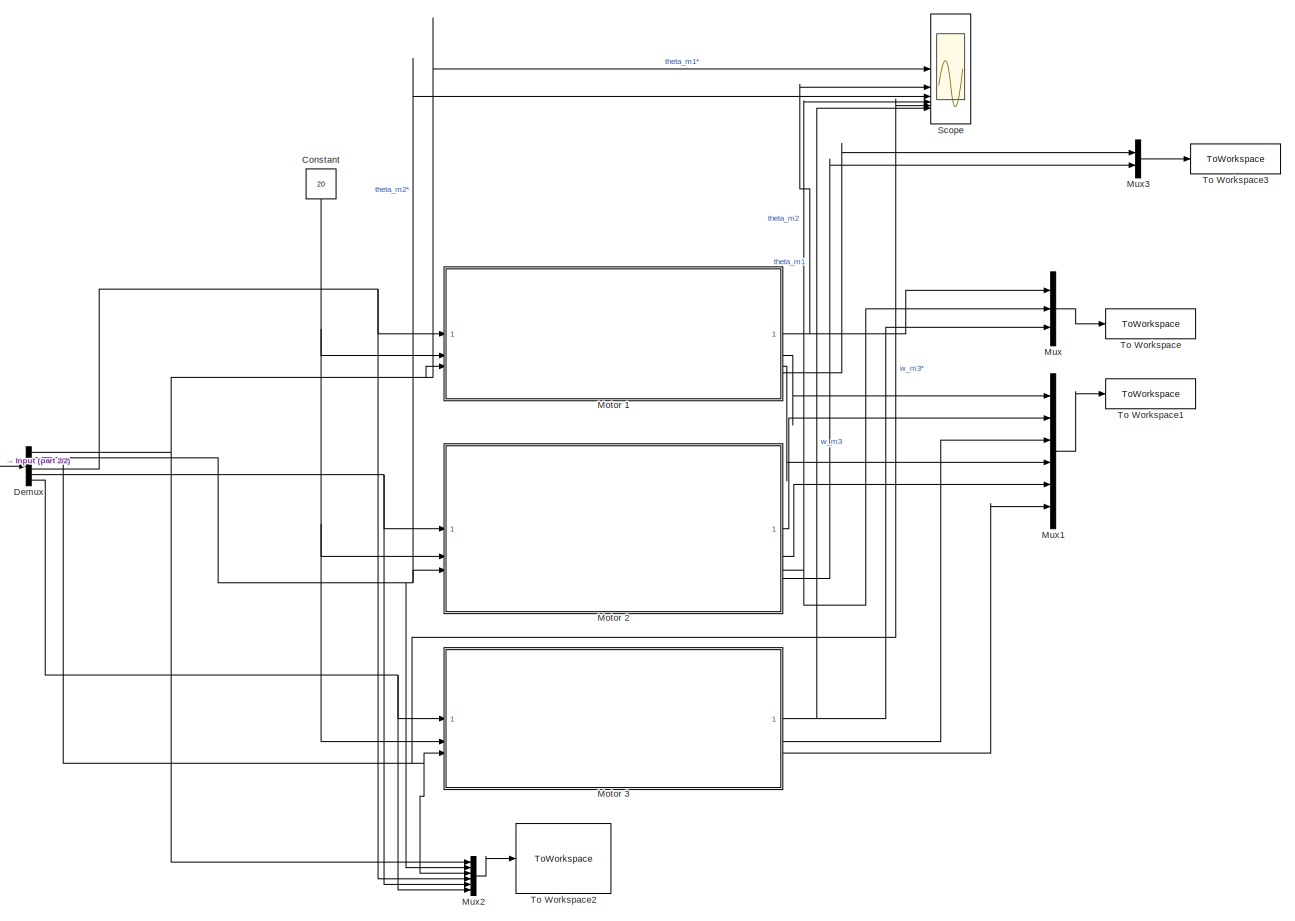
[diagram: root canvas - part 1/2, most of the canvas]
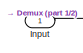
[diagram: root canvas - part 2/2, middle left region]
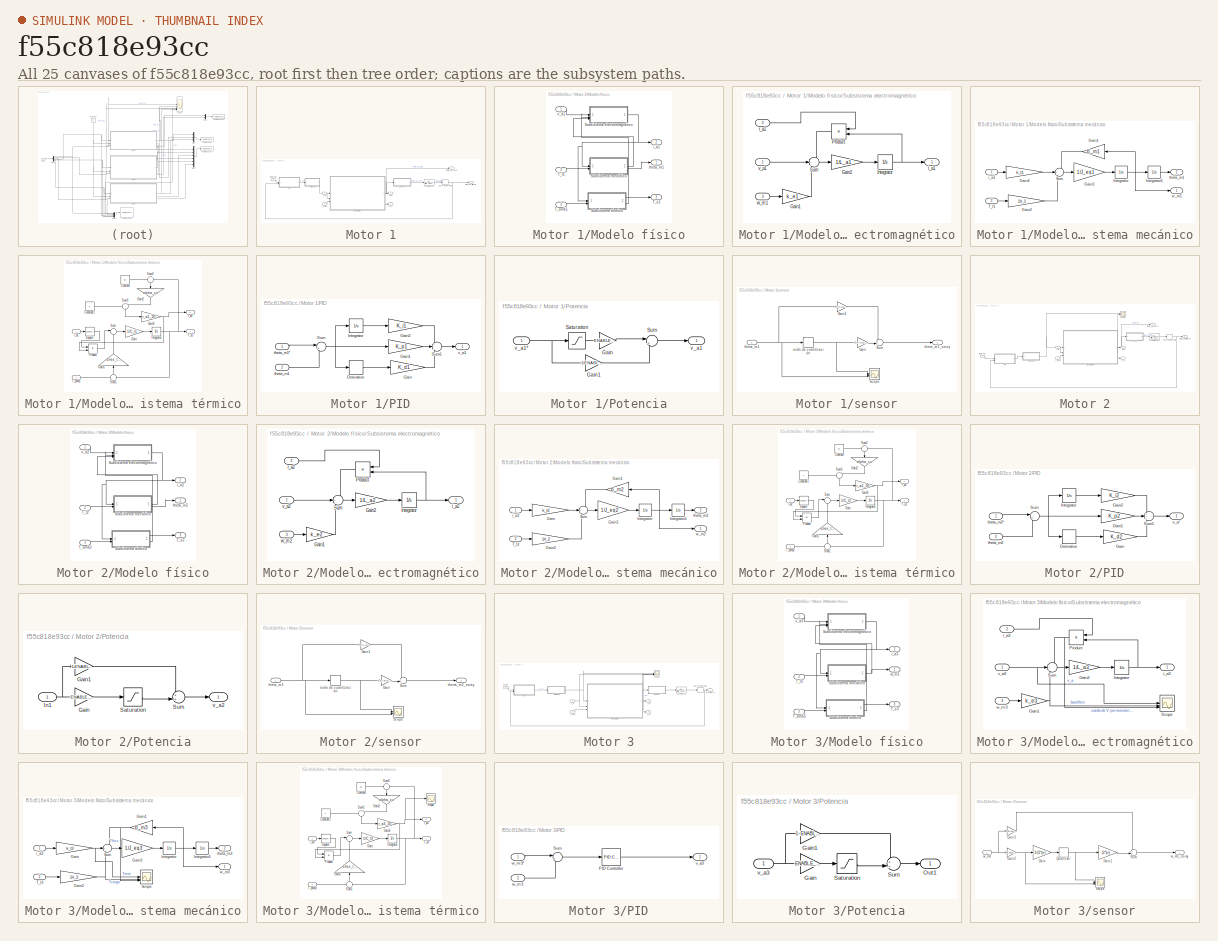
[diagram: thumbnail index - all 25 canvases of the model, root first then tree order]
MODEL slx_f55c818e93cc
KIND model
CONFIG AbsTol = auto
CONFIG EnableMultiTasking = off
CONFIG FixedStep = auto
CONFIG MaxStep = sim_max_step
CONFIG MinStep = auto
CONFIG RelTol = 1e-3
CONFIG SampleTimeConstraint = Unconstrained
CONFIG SolverName = ode15s
CONFIG StartTime = 0.0
CONFIG StopTime = sim_end_time
BLOCK [Constant] Constant
  NameLocation = left
  Value = 20
BLOCK [Demux] Demux
  Outputs = 6
BLOCK [Inport] Input
BLOCK [SubSystem] Motor 1
BLOCK [SubSystem] Motor 1/Modelo físico
BLOCK [SubSystem] Motor 1/Modelo físico/Subsistema electromagnético
BLOCK [Gain] Motor 1/Modelo físico/Subsistema electromagnético/Gain1
  Gain = k_e1
BLOCK [Gain] Motor 1/Modelo físico/Subsistema electromagnético/Gain2
  Gain = 1/L_a1
BLOCK [Integrator] Motor 1/Modelo físico/Subsistema electromagnético/Integrator
BLOCK [Product] Motor 1/Modelo físico/Subsistema electromagnético/Product
  NameLocation = top
BLOCK [Sum] Motor 1/Modelo físico/Subsistema electromagnético/Sum
  Inputs = -+-
  OutMax = [1]
  OutMin = [1]
BLOCK [Outport] Motor 1/Modelo físico/Subsistema electromagnético/i_a1
BLOCK [Inport] Motor 1/Modelo físico/Subsistema electromagnético/r_a1
  Port = 2
BLOCK [Inport] Motor 1/Modelo físico/Subsistema electromagnético/v_a1
BLOCK [Inport] Motor 1/Modelo físico/Subsistema electromagnético/w_m1
  Port = 3
BLOCK [SubSystem] Motor 1/Modelo físico/Subsistema mecánico
BLOCK [Gain] Motor 1/Modelo físico/Subsistema mecánico/Gain1
  Gain = b_m1
  NameLocation = top
BLOCK [Gain] Motor 1/Modelo físico/Subsistema mecánico/Gain2
  Gain = 1/r_1
BLOCK [Gain] Motor 1/Modelo físico/Subsistema mecánico/Gain3
  Gain = 1/J_eq1
BLOCK [Gain] Motor 1/Modelo físico/Subsistema mecánico/Gain4
  Gain = k_t1
BLOCK [Integrator] Motor 1/Modelo físico/Subsistema mecánico/Integrator
BLOCK [Integrator] Motor 1/Modelo físico/Subsistema mecánico/Integrator1
  InitialCondition = theta_m0_1
BLOCK [Sum] Motor 1/Modelo físico/Subsistema mecánico/Sum
  Inputs = -+-
BLOCK [Inport] Motor 1/Modelo físico/Subsistema mecánico/T_l1
  Port = 2
BLOCK [Inport] Motor 1/Modelo físico/Subsistema mecánico/i_a1
BLOCK [Outport] Motor 1/Modelo físico/Subsistema mecánico/theta_m1
  Port = 2
BLOCK [Outport] Motor 1/Modelo físico/Subsistema mecánico/w_m1
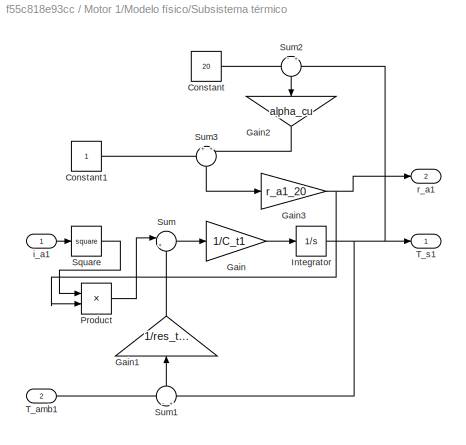
BLOCK [SubSystem] Motor 1/Modelo físico/Subsistema térmico
BLOCK [Constant] Motor 1/Modelo físico/Subsistema térmico/Constant
  Value = 20
BLOCK [Constant] Motor 1/Modelo físico/Subsistema térmico/Constant1
BLOCK [Gain] Motor 1/Modelo físico/Subsistema térmico/Gain
  Gain = 1/C_t1
BLOCK [Gain] Motor 1/Modelo físico/Subsistema térmico/Gain1
  Gain = 1/res_term_1
  NameLocation = right
BLOCK [Gain] Motor 1/Modelo físico/Subsistema térmico/Gain2
  Gain = alpha_cu
  NameLocation = left
BLOCK [Gain] Motor 1/Modelo físico/Subsistema térmico/Gain3
  Gain = r_a1_20
BLOCK [Integrator] Motor 1/Modelo físico/Subsistema térmico/Integrator
  InitialCondition = T_s0_1
BLOCK [Product] Motor 1/Modelo físico/Subsistema térmico/Product
BLOCK [Math] Motor 1/Modelo físico/Subsistema térmico/Square
  Operator = square
BLOCK [Sum] Motor 1/Modelo físico/Subsistema térmico/Sum
  Inputs = |+-
BLOCK [Sum] Motor 1/Modelo físico/Subsistema térmico/Sum1
  Inputs = -|+
  NameLocation = right
BLOCK [Sum] Motor 1/Modelo físico/Subsistema térmico/Sum2
  Inputs = -|+
  NameLocation = left
BLOCK [Sum] Motor 1/Modelo físico/Subsistema térmico/Sum3
  Inputs = +|+
  NameLocation = left
BLOCK [Inport] Motor 1/Modelo físico/Subsistema térmico/T_amb1
  Port = 2
BLOCK [Outport] Motor 1/Modelo físico/Subsistema térmico/T_s1
BLOCK [Inport] Motor 1/Modelo físico/Subsistema térmico/i_a1
BLOCK [Outport] Motor 1/Modelo físico/Subsistema térmico/r_a1
  Port = 2
BLOCK [Inport] Motor 1/Modelo físico/T_amb1
  Port = 3
BLOCK [Inport] Motor 1/Modelo físico/T_l1
  Port = 2
BLOCK [Outport] Motor 1/Modelo físico/T_s1
  Port = 3
  PortDimensions = 1
BLOCK [Outport] Motor 1/Modelo físico/i_a1
  Port = 2
  PortDimensions = 1
BLOCK [Outport] Motor 1/Modelo físico/theta_m1
BLOCK [Inport] Motor 1/Modelo físico/v_a1
BLOCK [SubSystem] Motor 1/PID
BLOCK [Derivative] Motor 1/PID/Derivative
BLOCK [Gain] Motor 1/PID/Gain
  Gain = K_d1
BLOCK [Gain] Motor 1/PID/Gain1
  Gain = K_p1
BLOCK [Gain] Motor 1/PID/Gain2
  Gain = K_i1
BLOCK [Integrator] Motor 1/PID/Integrator
BLOCK [Sum] Motor 1/PID/Sum
  Inputs = |+-
BLOCK [Sum] Motor 1/PID/Sum1
  Inputs = +++
BLOCK [Inport] Motor 1/PID/theta_m1
  Port = 2
BLOCK [Inport] Motor 1/PID/theta_m1*
BLOCK [Outport] Motor 1/PID/v_a1
BLOCK [SubSystem] Motor 1/Potencia
BLOCK [Gain] Motor 1/Potencia/Gain
  Gain = ENABLE_SATURATIONS
BLOCK [Gain] Motor 1/Potencia/Gain1
  Gain = 1-ENABLE_SATURATIONS
BLOCK [Saturate] Motor 1/Potencia/Saturation
  LowerLimit = -voltage_1
  UpperLimit = +voltage_1
BLOCK [Sum] Motor 1/Potencia/Sum
  Inputs = |++
BLOCK [Outport] Motor 1/Potencia/v_a1
BLOCK [Inport] Motor 1/Potencia/v_a1*
BLOCK [Inport] Motor 1/T_amb1
  Port = 2
BLOCK [Inport] Motor 1/T_l1
BLOCK [Outport] Motor 1/T_s1
  Port = 3
  PortDimensions = 1
BLOCK [TransferFcn] Motor 1/Transfer Fcn
  Denominator = [filter_RC 1]
BLOCK [ZeroOrderHold] Motor 1/Zero-Order Hold
  SampleTime = 1/sampling_frequency
BLOCK [Outport] Motor 1/i_a1
  Port = 2
  PortDimensions = 1
BLOCK [SubSystem] Motor 1/sensor
BLOCK [Gain] Motor 1/sensor/Gain
  Gain = ENABLE_SENSORS
BLOCK [Gain] Motor 1/sensor/Gain1
  Gain = 1-ENABLE_SENSORS
BLOCK [Scope] Motor 1/sensor/Scope
  Floating = off
  NumInputPorts = 2
  ScopeSpecificationString = Simulink.scopes.TimeScopeBlockCfg('CurrentConfiguration', extmgr.ConfigurationSet(extmgr.Configuration('Core','General UI',true),extmgr.Configuration('Core','Source UI',true),extmgr.Configuration('Sources','WiredSimulink',true,'DataLoggingVariableName','ScopeData1'),extmgr.Configuration('Visuals','Time Domain',true,'SerializedDisplays',{struct('MinYLimReal','0.01465','MaxYLimReal','0.02139','YLabe...<+1483ch>
BLOCK [Sum] Motor 1/sensor/Sum
  Inputs = ++|
BLOCK [Quantizer] Motor 1/sensor/ruido de cuantización
  QuantizationInterval = 360/enc_ppr_1*(pi/180)
BLOCK [Inport] Motor 1/sensor/theta_m1
BLOCK [Outport] Motor 1/sensor/theta_m1_noisy
BLOCK [Inport] Motor 1/theta_m1*
  Port = 3
BLOCK [Outport] Motor 1/theta_m1_filtered
  PortDimensions = 1
BLOCK [Outport] Motor 1/theta_m1_pura
  Port = 4
BLOCK [SubSystem] Motor 2
BLOCK [SubSystem] Motor 2/Modelo físico
BLOCK [SubSystem] Motor 2/Modelo físico/Subsistema electromagnético
BLOCK [Gain] Motor 2/Modelo físico/Subsistema electromagnético/Gain1
  Gain = k_e2
BLOCK [Gain] Motor 2/Modelo físico/Subsistema electromagnético/Gain2
  Gain = 1/L_a2
BLOCK [Integrator] Motor 2/Modelo físico/Subsistema electromagnético/Integrator
BLOCK [Product] Motor 2/Modelo físico/Subsistema electromagnético/Product
  NameLocation = top
BLOCK [Sum] Motor 2/Modelo físico/Subsistema electromagnético/Sum
  Inputs = -+-
BLOCK [Outport] Motor 2/Modelo físico/Subsistema electromagnético/i_a2
BLOCK [Inport] Motor 2/Modelo físico/Subsistema electromagnético/r_a2
  Port = 2
BLOCK [Inport] Motor 2/Modelo físico/Subsistema electromagnético/v_a2
BLOCK [Inport] Motor 2/Modelo físico/Subsistema electromagnético/w_m2
  Port = 3
BLOCK [SubSystem] Motor 2/Modelo físico/Subsistema mecánico
BLOCK [Gain] Motor 2/Modelo físico/Subsistema mecánico/Gain
  Gain = k_t2
BLOCK [Gain] Motor 2/Modelo físico/Subsistema mecánico/Gain1
  Gain = b_m2
  NameLocation = top
BLOCK [Gain] Motor 2/Modelo físico/Subsistema mecánico/Gain2
  Gain = 1/r_2
BLOCK [Gain] Motor 2/Modelo físico/Subsistema mecánico/Gain3
  Gain = 1/J_eq2
BLOCK [Integrator] Motor 2/Modelo físico/Subsistema mecánico/Integrator
BLOCK [Integrator] Motor 2/Modelo físico/Subsistema mecánico/Integrator1
  InitialCondition = theta_m0_2
BLOCK [Sum] Motor 2/Modelo físico/Subsistema mecánico/Sum
  Inputs = -+-
BLOCK [Inport] Motor 2/Modelo físico/Subsistema mecánico/T_l2
  Port = 2
BLOCK [Inport] Motor 2/Modelo físico/Subsistema mecánico/i_a2
BLOCK [Outport] Motor 2/Modelo físico/Subsistema mecánico/theta_m2
  Port = 2
BLOCK [Outport] Motor 2/Modelo físico/Subsistema mecánico/w_m2
BLOCK [SubSystem] Motor 2/Modelo físico/Subsistema térmico
BLOCK [Constant] Motor 2/Modelo físico/Subsistema térmico/Constant
  Value = 20
BLOCK [Constant] Motor 2/Modelo físico/Subsistema térmico/Constant1
BLOCK [Gain] Motor 2/Modelo físico/Subsistema térmico/Gain
  Gain = 1/C_t2
BLOCK [Gain] Motor 2/Modelo físico/Subsistema térmico/Gain1
  Gain = 1/res_term_2
  NameLocation = right
BLOCK [Gain] Motor 2/Modelo físico/Subsistema térmico/Gain2
  Gain = alpha_cu
  NameLocation = left
BLOCK [Gain] Motor 2/Modelo físico/Subsistema térmico/Gain3
  Gain = r_a2_20
BLOCK [Integrator] Motor 2/Modelo físico/Subsistema térmico/Integrator
  InitialCondition = T_s0_2
BLOCK [Product] Motor 2/Modelo físico/Subsistema térmico/Product
BLOCK [Math] Motor 2/Modelo físico/Subsistema térmico/Square
  Operator = square
BLOCK [Sum] Motor 2/Modelo físico/Subsistema térmico/Sum
  Inputs = |+-
BLOCK [Sum] Motor 2/Modelo físico/Subsistema térmico/Sum1
  Inputs = -|+
  NameLocation = right
BLOCK [Sum] Motor 2/Modelo físico/Subsistema térmico/Sum2
  Inputs = -|+
  NameLocation = left
BLOCK [Sum] Motor 2/Modelo físico/Subsistema térmico/Sum3
  Inputs = +|+
  NameLocation = left
BLOCK [Inport] Motor 2/Modelo físico/Subsistema térmico/T_amb2
  Port = 2
BLOCK [Outport] Motor 2/Modelo físico/Subsistema térmico/T_s2
  PortDimensions = 1
BLOCK [Inport] Motor 2/Modelo físico/Subsistema térmico/i_a2
BLOCK [Outport] Motor 2/Modelo físico/Subsistema térmico/r_a2
  Port = 2
BLOCK [Inport] Motor 2/Modelo físico/T_amb2
  Port = 3
BLOCK [Inport] Motor 2/Modelo físico/T_l2
  Port = 2
BLOCK [Outport] Motor 2/Modelo físico/T_s2
  Port = 3
  PortDimensions = 1
BLOCK [Outport] Motor 2/Modelo físico/i_a2
  Port = 2
  PortDimensions = 1
BLOCK [Outport] Motor 2/Modelo físico/theta_m2
BLOCK [Inport] Motor 2/Modelo físico/v_a2
BLOCK [SubSystem] Motor 2/PID
BLOCK [Derivative] Motor 2/PID/Derivative
BLOCK [Gain] Motor 2/PID/Gain
  Gain = K_d2
BLOCK [Gain] Motor 2/PID/Gain1
  Gain = K_p2
BLOCK [Gain] Motor 2/PID/Gain2
  Gain = K_i2
BLOCK [Integrator] Motor 2/PID/Integrator
BLOCK [Sum] Motor 2/PID/Sum
  Inputs = |+-
BLOCK [Sum] Motor 2/PID/Sum1
  Inputs = +++
BLOCK [Inport] Motor 2/PID/theta_m2
  Port = 2
BLOCK [Inport] Motor 2/PID/theta_m2*
BLOCK [Outport] Motor 2/PID/v_a*
BLOCK [SubSystem] Motor 2/Potencia
BLOCK [Gain] Motor 2/Potencia/Gain
  Gain = ENABLE_SATURATIONS
BLOCK [Gain] Motor 2/Potencia/Gain1
  Gain = 1-ENABLE_SATURATIONS
BLOCK [Inport] Motor 2/Potencia/In1
BLOCK [Saturate] Motor 2/Potencia/Saturation
  LowerLimit = -voltage_2
  UpperLimit = +voltage_2
BLOCK [Sum] Motor 2/Potencia/Sum
  Inputs = ++|
BLOCK [Outport] Motor 2/Potencia/v_a2
BLOCK [Scope] Motor 2/Scope
  Floating = off
  NumInputPorts = 2
  ScopeSpecificationString = Simulink.scopes.TimeScopeBlockCfg('CurrentConfiguration', extmgr.ConfigurationSet(extmgr.Configuration('Core','General UI',true),extmgr.Configuration('Core','Source UI',true),extmgr.Configuration('Sources','WiredSimulink',true,'DataLoggingVariableName','ScopeData1'),extmgr.Configuration('Visuals','Time Domain',true,'SerializedDisplays',{struct('MinYLimReal','-41.66241','MaxYLimReal','57.96249','YL...<+2093ch>
BLOCK [Inport] Motor 2/T_amb2
  Port = 2
BLOCK [Inport] Motor 2/T_l2
BLOCK [Outport] Motor 2/T_s2
  Port = 2
  PortDimensions = 1
BLOCK [TransferFcn] Motor 2/Transfer Fcn
  Denominator = [filter_RC 1]
BLOCK [ZeroOrderHold] Motor 2/Zero-Order Hold
  SampleTime = 1/sampling_frequency
BLOCK [Outport] Motor 2/i_a2
  PortDimensions = 1
BLOCK [SubSystem] Motor 2/sensor
BLOCK [Gain] Motor 2/sensor/Gain
  Gain = ENABLE_SENSORS
BLOCK [Gain] Motor 2/sensor/Gain1
  Gain = 1-ENABLE_SENSORS
BLOCK [Scope] Motor 2/sensor/Scope
  Floating = off
  NumInputPorts = 2
  ScopeSpecificationString = Simulink.scopes.TimeScopeBlockCfg('CurrentConfiguration', extmgr.ConfigurationSet(extmgr.Configuration('Core','General UI',true),extmgr.Configuration('Core','Source UI',true),extmgr.Configuration('Sources','WiredSimulink',true,'DataLoggingVariableName','ScopeData1'),extmgr.Configuration('Visuals','Time Domain',true,'SerializedDisplays',{struct('MinYLimReal','-10.32566','MaxYLimReal','92.0571','YLa...<+1483ch>
BLOCK [Sum] Motor 2/sensor/Sum
  Inputs = ++|
BLOCK [Quantizer] Motor 2/sensor/ruido de cuantización
  QuantizationInterval = 360/enc_ppr_2*(pi/180)
BLOCK [Outport] Motor 2/sensor/therta_m2_noisy
BLOCK [Inport] Motor 2/sensor/theta_m2
BLOCK [Inport] Motor 2/theta_m2*
  Port = 3
BLOCK [Outport] Motor 2/theta_m2_filtered
  Port = 3
  PortDimensions = 1
BLOCK [Outport] Motor 2/theta_m2_pura
  Port = 4
BLOCK [SubSystem] Motor 3
BLOCK [SubSystem] Motor 3/Modelo físico
BLOCK [SubSystem] Motor 3/Modelo físico/Subsistema electromagnético
BLOCK [Gain] Motor 3/Modelo físico/Subsistema electromagnético/Gain1
  Gain = k_e3
BLOCK [Gain] Motor 3/Modelo físico/Subsistema electromagnético/Gain2
  Gain = 1/L_a3
BLOCK [Integrator] Motor 3/Modelo físico/Subsistema electromagnético/Integrator
BLOCK [Product] Motor 3/Modelo físico/Subsistema electromagnético/Product
  NameLocation = top
BLOCK [Scope] Motor 3/Modelo físico/Subsistema electromagnético/Scope
  Floating = off
  NumInputPorts = 3
  ScopeSpecificationString = Simulink.scopes.TimeScopeBlockCfg('CurrentConfiguration', extmgr.ConfigurationSet(extmgr.Configuration('Core','General UI',true),extmgr.Configuration('Core','Source UI',true),extmgr.Configuration('Sources','WiredSimulink',true,'DataLoggingVariableName','ScopeData2'),extmgr.Configuration('Visuals','Time Domain',true,'SerializedDisplays',{struct('MinYLimReal','-9.00697','MaxYLimReal','81.00077','YLa...<+2828ch>
BLOCK [Sum] Motor 3/Modelo físico/Subsistema electromagnético/Sum
  Inputs = -+-
BLOCK [Outport] Motor 3/Modelo físico/Subsistema electromagnético/i_a3
  PortDimensions = 1
BLOCK [Inport] Motor 3/Modelo físico/Subsistema electromagnético/r_a3
  Port = 2
BLOCK [Inport] Motor 3/Modelo físico/Subsistema electromagnético/v_a3
BLOCK [Inport] Motor 3/Modelo físico/Subsistema electromagnético/w_m3
  Port = 3
BLOCK [SubSystem] Motor 3/Modelo físico/Subsistema mecánico
BLOCK [Gain] Motor 3/Modelo físico/Subsistema mecánico/Gain
  Gain = k_t3
BLOCK [Gain] Motor 3/Modelo físico/Subsistema mecánico/Gain1
  Gain = b_m3
  NameLocation = top
BLOCK [Gain] Motor 3/Modelo físico/Subsistema mecánico/Gain2
  Gain = 1/r_3
BLOCK [Gain] Motor 3/Modelo físico/Subsistema mecánico/Gain3
  Gain = 1/J_eq3
BLOCK [Integrator] Motor 3/Modelo físico/Subsistema mecánico/Integrator
BLOCK [Integrator] Motor 3/Modelo físico/Subsistema mecánico/Integrator1
BLOCK [Scope] Motor 3/Modelo físico/Subsistema mecánico/Scope
  Floating = off
  NumInputPorts = 3
  ScopeSpecificationString = Simulink.scopes.TimeScopeBlockCfg('CurrentConfiguration', extmgr.ConfigurationSet(extmgr.Configuration('Core','General UI',true),extmgr.Configuration('Core','Source UI',true),extmgr.Configuration('Sources','WiredSimulink',true,'DataLoggingVariableName','ScopeData2'),extmgr.Configuration('Visuals','Time Domain',true,'SerializedDisplays',{struct('MinYLimReal','212.12982','MaxYLimReal','212.46277','Y...<+2791ch>
BLOCK [Sum] Motor 3/Modelo físico/Subsistema mecánico/Sum
  Inputs = -+-
BLOCK [Inport] Motor 3/Modelo físico/Subsistema mecánico/T_l3
  Port = 2
BLOCK [Inport] Motor 3/Modelo físico/Subsistema mecánico/i_a3
BLOCK [Outport] Motor 3/Modelo físico/Subsistema mecánico/theta_m3
  Port = 2
  PortDimensions = 1
BLOCK [Outport] Motor 3/Modelo físico/Subsistema mecánico/w_m3
  PortDimensions = 1
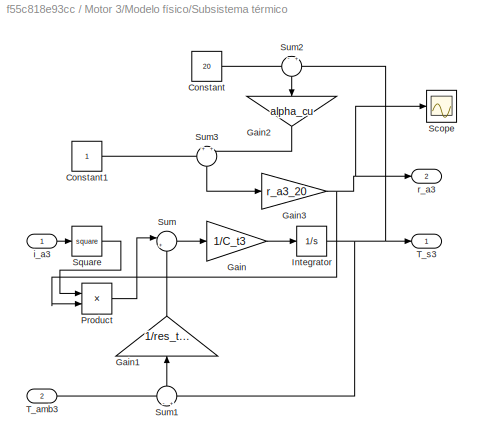
BLOCK [SubSystem] Motor 3/Modelo físico/Subsistema térmico
BLOCK [Constant] Motor 3/Modelo físico/Subsistema térmico/Constant
  Value = 20
BLOCK [Constant] Motor 3/Modelo físico/Subsistema térmico/Constant1
BLOCK [Gain] Motor 3/Modelo físico/Subsistema térmico/Gain
  Gain = 1/C_t3
BLOCK [Gain] Motor 3/Modelo físico/Subsistema térmico/Gain1
  Gain = 1/res_term_3
  NameLocation = right
BLOCK [Gain] Motor 3/Modelo físico/Subsistema térmico/Gain2
  Gain = alpha_cu
  NameLocation = left
BLOCK [Gain] Motor 3/Modelo físico/Subsistema térmico/Gain3
  Gain = r_a3_20
BLOCK [Integrator] Motor 3/Modelo físico/Subsistema térmico/Integrator
  InitialCondition = T_s0_3
BLOCK [Product] Motor 3/Modelo físico/Subsistema térmico/Product
BLOCK [Scope] Motor 3/Modelo físico/Subsistema térmico/Scope
  Floating = off
  NumInputPorts = 1
  ScopeSpecificationString = Simulink.scopes.TimeScopeBlockCfg('CurrentConfiguration', extmgr.ConfigurationSet(extmgr.Configuration('Core','General UI',true),extmgr.Configuration('Core','Source UI',true),extmgr.Configuration('Sources','WiredSimulink',true,'DataLoggingVariableName','ScopeData3'),extmgr.Configuration('Visuals','Time Domain',true,'SerializedDisplays',{struct('MinYLimReal','0.01126','MaxYLimReal','0.01297','YLabe...<+1414ch>
BLOCK [Math] Motor 3/Modelo físico/Subsistema térmico/Square
  Operator = square
BLOCK [Sum] Motor 3/Modelo físico/Subsistema térmico/Sum
  Inputs = |+-
BLOCK [Sum] Motor 3/Modelo físico/Subsistema térmico/Sum1
  Inputs = -|+
  NameLocation = right
BLOCK [Sum] Motor 3/Modelo físico/Subsistema térmico/Sum2
  Inputs = -|+
  NameLocation = left
BLOCK [Sum] Motor 3/Modelo físico/Subsistema térmico/Sum3
  Inputs = +|+
  NameLocation = left
BLOCK [Inport] Motor 3/Modelo físico/Subsistema térmico/T_amb3
  Port = 2
BLOCK [Outport] Motor 3/Modelo físico/Subsistema térmico/T_s3
  PortDimensions = 1
BLOCK [Inport] Motor 3/Modelo físico/Subsistema térmico/i_a3
BLOCK [Outport] Motor 3/Modelo físico/Subsistema térmico/r_a3
  Port = 2
  PortDimensions = 1
BLOCK [Inport] Motor 3/Modelo físico/T_amb3
  Port = 3
BLOCK [Inport] Motor 3/Modelo físico/T_l3
  Port = 2
BLOCK [Outport] Motor 3/Modelo físico/T_s3
  Port = 3
  PortDimensions = 1
BLOCK [Outport] Motor 3/Modelo físico/i_a3
  Port = 2
  PortDimensions = 1
BLOCK [Inport] Motor 3/Modelo físico/v_a3
BLOCK [Outport] Motor 3/Modelo físico/w_m3
  PortDimensions = 1
BLOCK [SubSystem] Motor 3/PID
BLOCK [Reference] Motor 3/PID/PID Controller  REF=slpidlib/PID Controller
  LibrarySourceBlock = simulink/Continuous/PID Controller
  SourceBlock = slpidlib/PID Controller
  SourceType = PID 1dof
BLOCK [Sum] Motor 3/PID/Sum
  Inputs = |+-
BLOCK [Outport] Motor 3/PID/v_a3
BLOCK [Inport] Motor 3/PID/w_m3
  Port = 2
BLOCK [Inport] Motor 3/PID/w_m3*
BLOCK [SubSystem] Motor 3/Potencia
BLOCK [Gain] Motor 3/Potencia/Gain
  Gain = ENABLE_SATURATIONS
BLOCK [Gain] Motor 3/Potencia/Gain1
  Gain = 1-ENABLE_SATURATIONS
BLOCK [Outport] Motor 3/Potencia/Out1
BLOCK [Saturate] Motor 3/Potencia/Saturation
  LowerLimit = -voltage_3
  UpperLimit = +voltage_3
BLOCK [Sum] Motor 3/Potencia/Sum
  Inputs = ++|
BLOCK [Inport] Motor 3/Potencia/v_a3
BLOCK [Scope] Motor 3/Scope
  Floating = off
  NumInputPorts = 4
  ScopeSpecificationString = Simulink.scopes.TimeScopeBlockCfg('CurrentConfiguration', extmgr.ConfigurationSet(extmgr.Configuration('Core','General UI',true),extmgr.Configuration('Core','Source UI',true),extmgr.Configuration('Sources','WiredSimulink',true,'DataLoggingVariableName','ScopeData1'),extmgr.Configuration('Visuals','Time Domain',true,'SerializedDisplays',{struct('MinYLimReal','49.83149','MaxYLimReal','274.53567','YL...<+3521ch>
BLOCK [Inport] Motor 3/T_amb3
  Port = 2
BLOCK [Inport] Motor 3/T_l3
BLOCK [Outport] Motor 3/T_s3
  Port = 3
BLOCK [TransferFcn] Motor 3/Transfer Fcn
  Denominator = [filter_RC 1]
BLOCK [ZeroOrderHold] Motor 3/Zero-Order Hold
  SampleTime = 1/sampling_frequency
BLOCK [Outport] Motor 3/i_a3
  Port = 2
BLOCK [SubSystem] Motor 3/sensor
BLOCK [Gain] Motor 3/sensor/Gain
  Gain = 1/(2*pi)
BLOCK [Gain] Motor 3/sensor/Gain1
  Gain = (2*pi)
BLOCK [Gain] Motor 3/sensor/Gain2
  Gain = ENABLE_SENSORS
BLOCK [Gain] Motor 3/sensor/Gain3
  Gain = 1-ENABLE_SENSORS
BLOCK [Quantizer] Motor 3/sensor/Quantizer
  QuantizationInterval = sensibilidad_sensor_3
BLOCK [Scope] Motor 3/sensor/Scope
  Floating = off
  NumInputPorts = 2
  ScopeSpecificationString = Simulink.scopes.TimeScopeBlockCfg('CurrentConfiguration', extmgr.ConfigurationSet(extmgr.Configuration('Core','General UI',true),extmgr.Configuration('Core','Source UI',true),extmgr.Configuration('Sources','WiredSimulink',true,'DataLoggingVariableName','ScopeData1'),extmgr.Configuration('Visuals','Time Domain',true,'SerializedDisplays',{struct('MinYLimReal','-6.20717','MaxYLimReal','106.1602','YLa...<+1473ch>
BLOCK [Sum] Motor 3/sensor/Sum
  Inputs = ++|
BLOCK [Inport] Motor 3/sensor/w_m3
BLOCK [Outport] Motor 3/sensor/w_m3_noisy
BLOCK [Inport] Motor 3/w_m3*
  Port = 3
BLOCK [Outport] Motor 3/w_m3_filtered
BLOCK [Mux] Mux
  DisplayOption = bar
  Inputs = 3
BLOCK [Mux] Mux1
  DisplayOption = bar
  Inputs = 6
BLOCK [Mux] Mux2
  DisplayOption = bar
  Inputs = 6
BLOCK [Mux] Mux3
  DisplayOption = bar
  Inputs = 2
BLOCK [Scope] Scope
  Floating = off
  NumInputPorts = 6
  ScopeSpecificationString = Simulink.scopes.TimeScopeBlockCfg('CurrentConfiguration', extmgr.ConfigurationSet(extmgr.Configuration('Core','General UI',true),extmgr.Configuration('Core','Source UI',true),extmgr.Configuration('Sources','WiredSimulink',true,'DataLoggingVariableName','ScopeData1'),extmgr.Configuration('Visuals','Time Domain',true,'SerializedDisplays',{struct('MinYLimReal','-0.01283','MaxYLimReal','0.11549','YLab...<+4922ch>
BLOCK [ToWorkspace] To Workspace
  FixptAsFi = on
  MaxDataPoints = inf
  SampleTime = -1
  SaveFormat = Timeseries
  VariableName = simoutMedidas
BLOCK [ToWorkspace] To Workspace1
  FixptAsFi = on
  MaxDataPoints = inf
  SampleTime = -1
  SaveFormat = Timeseries
  VariableName = simoutSimuladas
BLOCK [ToWorkspace] To Workspace2
  FixptAsFi = on
  MaxDataPoints = inf
  SampleTime = -1
  SaveFormat = Timeseries
  VariableName = simoutEntradas
BLOCK [ToWorkspace] To Workspace3
  FixptAsFi = on
  MaxDataPoints = inf
  SampleTime = -1
  SaveFormat = Timeseries
  VariableName = simoutLente
NET Constant:1 -> Motor 1:2, Motor 2:2, Motor 3:2
NET Demux:1 -> Motor 1:3, Mux2:1, Scope:1
NET Demux:2 -> Motor 2:3, Mux2:2, Scope:3
NET Demux:3 -> Motor 3:3, Mux2:3, Scope:5
NET Demux:4 -> Motor 1:1, Mux2:4
NET Demux:5 -> Motor 2:1, Mux2:5
NET Demux:6 -> Motor 3:1, Mux2:6
LINE Input:1 -> Demux:1
LINE Motor 1/Modelo físico/Subsistema electromagnético/Gain1:1 -> Motor 1/Modelo físico/Subsistema electromagnético/Sum:3
LINE Motor 1/Modelo físico/Subsistema electromagnético/Gain2:1 -> Motor 1/Modelo físico/Subsistema electromagnético/Integrator:1
NET Motor 1/Modelo físico/Subsistema electromagnético/Integrator:1 -> Motor 1/Modelo físico/Subsistema electromagnético/Product:2, Motor 1/Modelo físico/Subsistema electromagnético/i_a1:1
LINE Motor 1/Modelo físico/Subsistema electromagnético/Product:1 -> Motor 1/Modelo físico/Subsistema electromagnético/Sum:1
LINE Motor 1/Modelo físico/Subsistema electromagnético/Sum:1 -> Motor 1/Modelo físico/Subsistema electromagnético/Gain2:1
LINE Motor 1/Modelo físico/Subsistema electromagnético/r_a1:1 -> Motor 1/Modelo físico/Subsistema electromagnético/Product:1
LINE Motor 1/Modelo físico/Subsistema electromagnético/v_a1:1 -> Motor 1/Modelo físico/Subsistema electromagnético/Sum:2
LINE Motor 1/Modelo físico/Subsistema electromagnético/w_m1:1 -> Motor 1/Modelo físico/Subsistema electromagnético/Gain1:1
NET Motor 1/Modelo físico/Subsistema electromagnético:1 -> Motor 1/Modelo físico/Subsistema mecánico:1, Motor 1/Modelo físico/Subsistema térmico:1, Motor 1/Modelo físico/i_a1:1
LINE Motor 1/Modelo físico/Subsistema mecánico/Gain1:1 -> Motor 1/Modelo físico/Subsistema mecánico/Sum:1
LINE Motor 1/Modelo físico/Subsistema mecánico/Gain2:1 -> Motor 1/Modelo físico/Subsistema mecánico/Sum:3
LINE Motor 1/Modelo físico/Subsistema mecánico/Gain3:1 -> Motor 1/Modelo físico/Subsistema mecánico/Integrator:1
LINE Motor 1/Modelo físico/Subsistema mecánico/Gain4:1 -> Motor 1/Modelo físico/Subsistema mecánico/Sum:2
LINE Motor 1/Modelo físico/Subsistema mecánico/Integrator1:1 -> Motor 1/Modelo físico/Subsistema mecánico/theta_m1:1
NET Motor 1/Modelo físico/Subsistema mecánico/Integrator:1 -> Motor 1/Modelo físico/Subsistema mecánico/Gain1:1, Motor 1/Modelo físico/Subsistema mecánico/Integrator1:1, Motor 1/Modelo físico/Subsistema mecánico/w_m1:1
LINE Motor 1/Modelo físico/Subsistema mecánico/Sum:1 -> Motor 1/Modelo físico/Subsistema mecánico/Gain3:1
LINE Motor 1/Modelo físico/Subsistema mecánico/T_l1:1 -> Motor 1/Modelo físico/Subsistema mecánico/Gain2:1
LINE Motor 1/Modelo físico/Subsistema mecánico/i_a1:1 -> Motor 1/Modelo físico/Subsistema mecánico/Gain4:1
LINE Motor 1/Modelo físico/Subsistema mecánico:1 -> Motor 1/Modelo físico/Subsistema electromagnético:3
LINE Motor 1/Modelo físico/Subsistema mecánico:2 -> Motor 1/Modelo físico/theta_m1:1
LINE Motor 1/Modelo físico/Subsistema térmico/Constant1:1 -> Motor 1/Modelo físico/Subsistema térmico/Sum3:1
LINE Motor 1/Modelo físico/Subsistema térmico/Constant:1 -> Motor 1/Modelo físico/Subsistema térmico/Sum2:1
LINE Motor 1/Modelo físico/Subsistema térmico/Gain1:1 -> Motor 1/Modelo físico/Subsistema térmico/Sum:2
LINE Motor 1/Modelo físico/Subsistema térmico/Gain2:1 -> Motor 1/Modelo físico/Subsistema térmico/Sum3:2
NET Motor 1/Modelo físico/Subsistema térmico/Gain3:1 -> Motor 1/Modelo físico/Subsistema térmico/Product:2, Motor 1/Modelo físico/Subsistema térmico/r_a1:1
LINE Motor 1/Modelo físico/Subsistema térmico/Gain:1 -> Motor 1/Modelo físico/Subsistema térmico/Integrator:1
NET Motor 1/Modelo físico/Subsistema térmico/Integrator:1 -> Motor 1/Modelo físico/Subsistema térmico/Sum1:2, Motor 1/Modelo físico/Subsistema térmico/Sum2:2, Motor 1/Modelo físico/Subsistema térmico/T_s1:1
LINE Motor 1/Modelo físico/Subsistema térmico/Product:1 -> Motor 1/Modelo físico/Subsistema térmico/Sum:1
LINE Motor 1/Modelo físico/Subsistema térmico/Square:1 -> Motor 1/Modelo físico/Subsistema térmico/Product:1
LINE Motor 1/Modelo físico/Subsistema térmico/Sum1:1 -> Motor 1/Modelo físico/Subsistema térmico/Gain1:1
LINE Motor 1/Modelo físico/Subsistema térmico/Sum2:1 -> Motor 1/Modelo físico/Subsistema térmico/Gain2:1
LINE Motor 1/Modelo físico/Subsistema térmico/Sum3:1 -> Motor 1/Modelo físico/Subsistema térmico/Gain3:1
LINE Motor 1/Modelo físico/Subsistema térmico/Sum:1 -> Motor 1/Modelo físico/Subsistema térmico/Gain:1
LINE Motor 1/Modelo físico/Subsistema térmico/T_amb1:1 -> Motor 1/Modelo físico/Subsistema térmico/Sum1:1
LINE Motor 1/Modelo físico/Subsistema térmico/i_a1:1 -> Motor 1/Modelo físico/Subsistema térmico/Square:1
LINE Motor 1/Modelo físico/Subsistema térmico:1 -> Motor 1/Modelo físico/T_s1:1
LINE Motor 1/Modelo físico/Subsistema térmico:2 -> Motor 1/Modelo físico/Subsistema electromagnético:2
LINE Motor 1/Modelo físico/T_amb1:1 -> Motor 1/Modelo físico/Subsistema térmico:2
LINE Motor 1/Modelo físico/T_l1:1 -> Motor 1/Modelo físico/Subsistema mecánico:2
LINE Motor 1/Modelo físico/v_a1:1 -> Motor 1/Modelo físico/Subsistema electromagnético:1
NET Motor 1/Modelo físico:1 -> Motor 1/sensor:1, Motor 1/theta_m1_pura:1
LINE Motor 1/Modelo físico:2 -> Motor 1/i_a1:1
LINE Motor 1/Modelo físico:3 -> Motor 1/T_s1:1
LINE Motor 1/PID/Derivative:1 -> Motor 1/PID/Gain:1
LINE Motor 1/PID/Gain1:1 -> Motor 1/PID/Sum1:2
LINE Motor 1/PID/Gain2:1 -> Motor 1/PID/Sum1:1
LINE Motor 1/PID/Gain:1 -> Motor 1/PID/Sum1:3
LINE Motor 1/PID/Integrator:1 -> Motor 1/PID/Gain2:1
LINE Motor 1/PID/Sum1:1 -> Motor 1/PID/v_a1:1
NET Motor 1/PID/Sum:1 -> Motor 1/PID/Derivative:1, Motor 1/PID/Gain1:1, Motor 1/PID/Integrator:1
LINE Motor 1/PID/theta_m1*:1 -> Motor 1/PID/Sum:1
LINE Motor 1/PID/theta_m1:1 -> Motor 1/PID/Sum:2
LINE Motor 1/PID:1 -> Motor 1/Potencia:1
LINE Motor 1/Potencia/Gain1:1 -> Motor 1/Potencia/Sum:2
LINE Motor 1/Potencia/Gain:1 -> Motor 1/Potencia/Sum:1
LINE Motor 1/Potencia/Saturation:1 -> Motor 1/Potencia/Gain:1
LINE Motor 1/Potencia/Sum:1 -> Motor 1/Potencia/v_a1:1
NET Motor 1/Potencia/v_a1*:1 -> Motor 1/Potencia/Gain1:1, Motor 1/Potencia/Saturation:1
LINE Motor 1/Potencia:1 -> Motor 1/Modelo físico:1
LINE Motor 1/T_amb1:1 -> Motor 1/Modelo físico:3
LINE Motor 1/T_l1:1 -> Motor 1/Modelo físico:2
LINE Motor 1/Transfer Fcn:1 -> Motor 1/Zero-Order Hold:1
NET Motor 1/Zero-Order Hold:1 -> Motor 1/PID:2, Motor 1/theta_m1_filtered:1
LINE Motor 1/sensor/Gain1:1 -> Motor 1/sensor/Sum:1
LINE Motor 1/sensor/Gain:1 -> Motor 1/sensor/Sum:2
LINE Motor 1/sensor/Sum:1 -> Motor 1/sensor/theta_m1_noisy:1
NET Motor 1/sensor/ruido de cuantización:1 -> Motor 1/sensor/Gain:1, Motor 1/sensor/Scope:1
NET Motor 1/sensor/theta_m1:1 -> Motor 1/sensor/Gain1:1, Motor 1/sensor/Scope:2, Motor 1/sensor/ruido de cuantización:1
LINE Motor 1/sensor:1 -> Motor 1/Transfer Fcn:1
LINE Motor 1/theta_m1*:1 -> Motor 1/PID:1
NET Motor 1:1 -> Mux:1, Scope:2
LINE Motor 1:2 -> Mux1:1
LINE Motor 1:3 -> Mux1:4
LINE Motor 1:4 -> Mux3:1
LINE Motor 2/Modelo físico/Subsistema electromagnético/Gain1:1 -> Motor 2/Modelo físico/Subsistema electromagnético/Sum:3
LINE Motor 2/Modelo físico/Subsistema electromagnético/Gain2:1 -> Motor 2/Modelo físico/Subsistema electromagnético/Integrator:1
NET Motor 2/Modelo físico/Subsistema electromagnético/Integrator:1 -> Motor 2/Modelo físico/Subsistema electromagnético/Product:2, Motor 2/Modelo físico/Subsistema electromagnético/i_a2:1
LINE Motor 2/Modelo físico/Subsistema electromagnético/Product:1 -> Motor 2/Modelo físico/Subsistema electromagnético/Sum:1
LINE Motor 2/Modelo físico/Subsistema electromagnético/Sum:1 -> Motor 2/Modelo físico/Subsistema electromagnético/Gain2:1
LINE Motor 2/Modelo físico/Subsistema electromagnético/r_a2:1 -> Motor 2/Modelo físico/Subsistema electromagnético/Product:1
LINE Motor 2/Modelo físico/Subsistema electromagnético/v_a2:1 -> Motor 2/Modelo físico/Subsistema electromagnético/Sum:2
LINE Motor 2/Modelo físico/Subsistema electromagnético/w_m2:1 -> Motor 2/Modelo físico/Subsistema electromagnético/Gain1:1
NET Motor 2/Modelo físico/Subsistema electromagnético:1 -> Motor 2/Modelo físico/Subsistema mecánico:1, Motor 2/Modelo físico/Subsistema térmico:1, Motor 2/Modelo físico/i_a2:1
LINE Motor 2/Modelo físico/Subsistema mecánico/Gain1:1 -> Motor 2/Modelo físico/Subsistema mecánico/Sum:1
LINE Motor 2/Modelo físico/Subsistema mecánico/Gain2:1 -> Motor 2/Modelo físico/Subsistema mecánico/Sum:3
LINE Motor 2/Modelo físico/Subsistema mecánico/Gain3:1 -> Motor 2/Modelo físico/Subsistema mecánico/Integrator:1
LINE Motor 2/Modelo físico/Subsistema mecánico/Gain:1 -> Motor 2/Modelo físico/Subsistema mecánico/Sum:2
LINE Motor 2/Modelo físico/Subsistema mecánico/Integrator1:1 -> Motor 2/Modelo físico/Subsistema mecánico/theta_m2:1
NET Motor 2/Modelo físico/Subsistema mecánico/Integrator:1 -> Motor 2/Modelo físico/Subsistema mecánico/Gain1:1, Motor 2/Modelo físico/Subsistema mecánico/Integrator1:1, Motor 2/Modelo físico/Subsistema mecánico/w_m2:1
LINE Motor 2/Modelo físico/Subsistema mecánico/Sum:1 -> Motor 2/Modelo físico/Subsistema mecánico/Gain3:1
LINE Motor 2/Modelo físico/Subsistema mecánico/T_l2:1 -> Motor 2/Modelo físico/Subsistema mecánico/Gain2:1
LINE Motor 2/Modelo físico/Subsistema mecánico/i_a2:1 -> Motor 2/Modelo físico/Subsistema mecánico/Gain:1
LINE Motor 2/Modelo físico/Subsistema mecánico:1 -> Motor 2/Modelo físico/Subsistema electromagnético:3
LINE Motor 2/Modelo físico/Subsistema mecánico:2 -> Motor 2/Modelo físico/theta_m2:1
LINE Motor 2/Modelo físico/Subsistema térmico/Constant1:1 -> Motor 2/Modelo físico/Subsistema térmico/Sum3:1
LINE Motor 2/Modelo físico/Subsistema térmico/Constant:1 -> Motor 2/Modelo físico/Subsistema térmico/Sum2:1
LINE Motor 2/Modelo físico/Subsistema térmico/Gain1:1 -> Motor 2/Modelo físico/Subsistema térmico/Sum:2
LINE Motor 2/Modelo físico/Subsistema térmico/Gain2:1 -> Motor 2/Modelo físico/Subsistema térmico/Sum3:2
NET Motor 2/Modelo físico/Subsistema térmico/Gain3:1 -> Motor 2/Modelo físico/Subsistema térmico/Product:2, Motor 2/Modelo físico/Subsistema térmico/r_a2:1
LINE Motor 2/Modelo físico/Subsistema térmico/Gain:1 -> Motor 2/Modelo físico/Subsistema térmico/Integrator:1
NET Motor 2/Modelo físico/Subsistema térmico/Integrator:1 -> Motor 2/Modelo físico/Subsistema térmico/Sum1:2, Motor 2/Modelo físico/Subsistema térmico/Sum2:2, Motor 2/Modelo físico/Subsistema térmico/T_s2:1
LINE Motor 2/Modelo físico/Subsistema térmico/Product:1 -> Motor 2/Modelo físico/Subsistema térmico/Sum:1
LINE Motor 2/Modelo físico/Subsistema térmico/Square:1 -> Motor 2/Modelo físico/Subsistema térmico/Product:1
LINE Motor 2/Modelo físico/Subsistema térmico/Sum1:1 -> Motor 2/Modelo físico/Subsistema térmico/Gain1:1
LINE Motor 2/Modelo físico/Subsistema térmico/Sum2:1 -> Motor 2/Modelo físico/Subsistema térmico/Gain2:1
LINE Motor 2/Modelo físico/Subsistema térmico/Sum3:1 -> Motor 2/Modelo físico/Subsistema térmico/Gain3:1
LINE Motor 2/Modelo físico/Subsistema térmico/Sum:1 -> Motor 2/Modelo físico/Subsistema térmico/Gain:1
LINE Motor 2/Modelo físico/Subsistema térmico/T_amb2:1 -> Motor 2/Modelo físico/Subsistema térmico/Sum1:1
LINE Motor 2/Modelo físico/Subsistema térmico/i_a2:1 -> Motor 2/Modelo físico/Subsistema térmico/Square:1
LINE Motor 2/Modelo físico/Subsistema térmico:1 -> Motor 2/Modelo físico/T_s2:1
LINE Motor 2/Modelo físico/Subsistema térmico:2 -> Motor 2/Modelo físico/Subsistema electromagnético:2
LINE Motor 2/Modelo físico/T_amb2:1 -> Motor 2/Modelo físico/Subsistema térmico:2
LINE Motor 2/Modelo físico/T_l2:1 -> Motor 2/Modelo físico/Subsistema mecánico:2
LINE Motor 2/Modelo físico/v_a2:1 -> Motor 2/Modelo físico/Subsistema electromagnético:1
NET Motor 2/Modelo físico:1 -> Motor 2/sensor:1, Motor 2/theta_m2_pura:1
NET Motor 2/Modelo físico:2 -> Motor 2/Scope:2, Motor 2/i_a2:1
LINE Motor 2/Modelo físico:3 -> Motor 2/T_s2:1
LINE Motor 2/PID/Derivative:1 -> Motor 2/PID/Gain:1
LINE Motor 2/PID/Gain1:1 -> Motor 2/PID/Sum1:2
LINE Motor 2/PID/Gain2:1 -> Motor 2/PID/Sum1:1
LINE Motor 2/PID/Gain:1 -> Motor 2/PID/Sum1:3
LINE Motor 2/PID/Integrator:1 -> Motor 2/PID/Gain2:1
LINE Motor 2/PID/Sum1:1 -> Motor 2/PID/v_a*:1
NET Motor 2/PID/Sum:1 -> Motor 2/PID/Derivative:1, Motor 2/PID/Gain1:1, Motor 2/PID/Integrator:1
LINE Motor 2/PID/theta_m2*:1 -> Motor 2/PID/Sum:1
LINE Motor 2/PID/theta_m2:1 -> Motor 2/PID/Sum:2
LINE Motor 2/PID:1 -> Motor 2/Potencia:1
LINE Motor 2/Potencia/Gain1:1 -> Motor 2/Potencia/Sum:1
LINE Motor 2/Potencia/Gain:1 -> Motor 2/Potencia/Saturation:1
NET Motor 2/Potencia/In1:1 -> Motor 2/Potencia/Gain1:1, Motor 2/Potencia/Gain:1
LINE Motor 2/Potencia/Saturation:1 -> Motor 2/Potencia/Sum:2
LINE Motor 2/Potencia/Sum:1 -> Motor 2/Potencia/v_a2:1
NET Motor 2/Potencia:1 -> Motor 2/Modelo físico:1, Motor 2/Scope:1
LINE Motor 2/T_amb2:1 -> Motor 2/Modelo físico:3
LINE Motor 2/T_l2:1 -> Motor 2/Modelo físico:2
LINE Motor 2/Transfer Fcn:1 -> Motor 2/Zero-Order Hold:1
NET Motor 2/Zero-Order Hold:1 -> Motor 2/PID:2, Motor 2/theta_m2_filtered:1
LINE Motor 2/sensor/Gain1:1 -> Motor 2/sensor/Sum:1
LINE Motor 2/sensor/Gain:1 -> Motor 2/sensor/Sum:2
LINE Motor 2/sensor/Sum:1 -> Motor 2/sensor/therta_m2_noisy:1
NET Motor 2/sensor/ruido de cuantización:1 -> Motor 2/sensor/Gain:1, Motor 2/sensor/Scope:1
NET Motor 2/sensor/theta_m2:1 -> Motor 2/sensor/Gain1:1, Motor 2/sensor/Scope:2, Motor 2/sensor/ruido de cuantización:1
LINE Motor 2/sensor:1 -> Motor 2/Transfer Fcn:1
LINE Motor 2/theta_m2*:1 -> Motor 2/PID:1
LINE Motor 2:1 -> Mux1:2
LINE Motor 2:2 -> Mux1:5
NET Motor 2:3 -> Mux:2, Scope:4
LINE Motor 2:4 -> Mux3:2
NET Motor 3/Modelo físico/Subsistema electromagnético/Gain1:1 -> Motor 3/Modelo físico/Subsistema electromagnético/Scope:2, Motor 3/Modelo físico/Subsistema electromagnético/Sum:3
LINE Motor 3/Modelo físico/Subsistema electromagnético/Gain2:1 -> Motor 3/Modelo físico/Subsistema electromagnético/Integrator:1
NET Motor 3/Modelo físico/Subsistema electromagnético/Integrator:1 -> Motor 3/Modelo físico/Subsistema electromagnético/Product:2, Motor 3/Modelo físico/Subsistema electromagnético/i_a3:1
NET Motor 3/Modelo físico/Subsistema electromagnético/Product:1 -> Motor 3/Modelo físico/Subsistema electromagnético/Scope:3, Motor 3/Modelo físico/Subsistema electromagnético/Sum:1
LINE Motor 3/Modelo físico/Subsistema electromagnético/Sum:1 -> Motor 3/Modelo físico/Subsistema electromagnético/Gain2:1
LINE Motor 3/Modelo físico/Subsistema electromagnético/r_a3:1 -> Motor 3/Modelo físico/Subsistema electromagnético/Product:1
NET Motor 3/Modelo físico/Subsistema electromagnético/v_a3:1 -> Motor 3/Modelo físico/Subsistema electromagnético/Scope:1, Motor 3/Modelo físico/Subsistema electromagnético/Sum:2
LINE Motor 3/Modelo físico/Subsistema electromagnético/w_m3:1 -> Motor 3/Modelo físico/Subsistema electromagnético/Gain1:1
NET Motor 3/Modelo físico/Subsistema electromagnético:1 -> Motor 3/Modelo físico/Subsistema mecánico:1, Motor 3/Modelo físico/Subsistema térmico:1, Motor 3/Modelo físico/i_a3:1
NET Motor 3/Modelo físico/Subsistema mecánico/Gain1:1 -> Motor 3/Modelo físico/Subsistema mecánico/Scope:3, Motor 3/Modelo físico/Subsistema mecánico/Sum:1
NET Motor 3/Modelo físico/Subsistema mecánico/Gain2:1 -> Motor 3/Modelo físico/Subsistema mecánico/Scope:2, Motor 3/Modelo físico/Subsistema mecánico/Sum:3
LINE Motor 3/Modelo físico/Subsistema mecánico/Gain3:1 -> Motor 3/Modelo físico/Subsistema mecánico/Integrator:1
NET Motor 3/Modelo físico/Subsistema mecánico/Gain:1 -> Motor 3/Modelo físico/Subsistema mecánico/Scope:1, Motor 3/Modelo físico/Subsistema mecánico/Sum:2
LINE Motor 3/Modelo físico/Subsistema mecánico/Integrator1:1 -> Motor 3/Modelo físico/Subsistema mecánico/theta_m3:1
NET Motor 3/Modelo físico/Subsistema mecánico/Integrator:1 -> Motor 3/Modelo físico/Subsistema mecánico/Gain1:1, Motor 3/Modelo físico/Subsistema mecánico/Integrator1:1, Motor 3/Modelo físico/Subsistema mecánico/w_m3:1
LINE Motor 3/Modelo físico/Subsistema mecánico/Sum:1 -> Motor 3/Modelo físico/Subsistema mecánico/Gain3:1
LINE Motor 3/Modelo físico/Subsistema mecánico/T_l3:1 -> Motor 3/Modelo físico/Subsistema mecánico/Gain2:1
LINE Motor 3/Modelo físico/Subsistema mecánico/i_a3:1 -> Motor 3/Modelo físico/Subsistema mecánico/Gain:1
NET Motor 3/Modelo físico/Subsistema mecánico:1 -> Motor 3/Modelo físico/Subsistema electromagnético:3, Motor 3/Modelo físico/w_m3:1
LINE Motor 3/Modelo físico/Subsistema térmico/Constant1:1 -> Motor 3/Modelo físico/Subsistema térmico/Sum3:1
LINE Motor 3/Modelo físico/Subsistema térmico/Constant:1 -> Motor 3/Modelo físico/Subsistema térmico/Sum2:1
LINE Motor 3/Modelo físico/Subsistema térmico/Gain1:1 -> Motor 3/Modelo físico/Subsistema térmico/Sum:2
LINE Motor 3/Modelo físico/Subsistema térmico/Gain2:1 -> Motor 3/Modelo físico/Subsistema térmico/Sum3:2
NET Motor 3/Modelo físico/Subsistema térmico/Gain3:1 -> Motor 3/Modelo físico/Subsistema térmico/Product:2, Motor 3/Modelo físico/Subsistema térmico/Scope:1, Motor 3/Modelo físico/Subsistema térmico/r_a3:1
LINE Motor 3/Modelo físico/Subsistema térmico/Gain:1 -> Motor 3/Modelo físico/Subsistema térmico/Integrator:1
NET Motor 3/Modelo físico/Subsistema térmico/Integrator:1 -> Motor 3/Modelo físico/Subsistema térmico/Sum1:2, Motor 3/Modelo físico/Subsistema térmico/Sum2:2, Motor 3/Modelo físico/Subsistema térmico/T_s3:1
LINE Motor 3/Modelo físico/Subsistema térmico/Product:1 -> Motor 3/Modelo físico/Subsistema térmico/Sum:1
LINE Motor 3/Modelo físico/Subsistema térmico/Square:1 -> Motor 3/Modelo físico/Subsistema térmico/Product:1
LINE Motor 3/Modelo físico/Subsistema térmico/Sum1:1 -> Motor 3/Modelo físico/Subsistema térmico/Gain1:1
LINE Motor 3/Modelo físico/Subsistema térmico/Sum2:1 -> Motor 3/Modelo físico/Subsistema térmico/Gain2:1
LINE Motor 3/Modelo físico/Subsistema térmico/Sum3:1 -> Motor 3/Modelo físico/Subsistema térmico/Gain3:1
LINE Motor 3/Modelo físico/Subsistema térmico/Sum:1 -> Motor 3/Modelo físico/Subsistema térmico/Gain:1
LINE Motor 3/Modelo físico/Subsistema térmico/T_amb3:1 -> Motor 3/Modelo físico/Subsistema térmico/Sum1:1
LINE Motor 3/Modelo físico/Subsistema térmico/i_a3:1 -> Motor 3/Modelo físico/Subsistema térmico/Square:1
LINE Motor 3/Modelo físico/Subsistema térmico:1 -> Motor 3/Modelo físico/T_s3:1
LINE Motor 3/Modelo físico/Subsistema térmico:2 -> Motor 3/Modelo físico/Subsistema electromagnético:2
LINE Motor 3/Modelo físico/T_amb3:1 -> Motor 3/Modelo físico/Subsistema térmico:2
LINE Motor 3/Modelo físico/T_l3:1 -> Motor 3/Modelo físico/Subsistema mecánico:2
LINE Motor 3/Modelo físico/v_a3:1 -> Motor 3/Modelo físico/Subsistema electromagnético:1
LINE Motor 3/Modelo físico:1 -> Motor 3/sensor:1
NET Motor 3/Modelo físico:2 -> Motor 3/Scope:2, Motor 3/i_a3:1
NET Motor 3/Modelo físico:3 -> Motor 3/Scope:4, Motor 3/T_s3:1
LINE Motor 3/PID/PID Controller:1 -> Motor 3/PID/v_a3:1
LINE Motor 3/PID/Sum:1 -> Motor 3/PID/PID Controller:1
LINE Motor 3/PID/w_m3*:1 -> Motor 3/PID/Sum:1
LINE Motor 3/PID/w_m3:1 -> Motor 3/PID/Sum:2
LINE Motor 3/PID:1 -> Motor 3/Potencia:1
LINE Motor 3/Potencia/Gain1:1 -> Motor 3/Potencia/Sum:1
LINE Motor 3/Potencia/Gain:1 -> Motor 3/Potencia/Saturation:1
LINE Motor 3/Potencia/Saturation:1 -> Motor 3/Potencia/Sum:2
LINE Motor 3/Potencia/Sum:1 -> Motor 3/Potencia/Out1:1
NET Motor 3/Potencia/v_a3:1 -> Motor 3/Potencia/Gain1:1, Motor 3/Potencia/Gain:1
NET Motor 3/Potencia:1 -> Motor 3/Modelo físico:1, Motor 3/Scope:1
LINE Motor 3/T_amb3:1 -> Motor 3/Modelo físico:3
NET Motor 3/T_l3:1 -> Motor 3/Modelo físico:2, Motor 3/Scope:3
LINE Motor 3/Transfer Fcn:1 -> Motor 3/Zero-Order Hold:1
NET Motor 3/Zero-Order Hold:1 -> Motor 3/PID:2, Motor 3/w_m3_filtered:1
LINE Motor 3/sensor/Gain1:1 -> Motor 3/sensor/Sum:2
NET Motor 3/sensor/Gain2:1 -> Motor 3/sensor/Gain:1, Motor 3/sensor/Scope:2
LINE Motor 3/sensor/Gain3:1 -> Motor 3/sensor/Sum:1
LINE Motor 3/sensor/Gain:1 -> Motor 3/sensor/Quantizer:1
NET Motor 3/sensor/Quantizer:1 -> Motor 3/sensor/Gain1:1, Motor 3/sensor/Scope:1
LINE Motor 3/sensor/Sum:1 -> Motor 3/sensor/w_m3_noisy:1
NET Motor 3/sensor/w_m3:1 -> Motor 3/sensor/Gain2:1, Motor 3/sensor/Gain3:1
LINE Motor 3/sensor:1 -> Motor 3/Transfer Fcn:1
LINE Motor 3/w_m3*:1 -> Motor 3/PID:1
NET Motor 3:1 -> Mux:3, Scope:6
LINE Motor 3:2 -> Mux1:3
LINE Motor 3:3 -> Mux1:6
LINE Mux1:1 -> To Workspace1:1
LINE Mux2:1 -> To Workspace2:1
LINE Mux3:1 -> To Workspace3:1
LINE Mux:1 -> To Workspace:1
note: NET lines group one-source signal fan-out (src -> all destinations, sorted); 1:1 wires keep LINE
